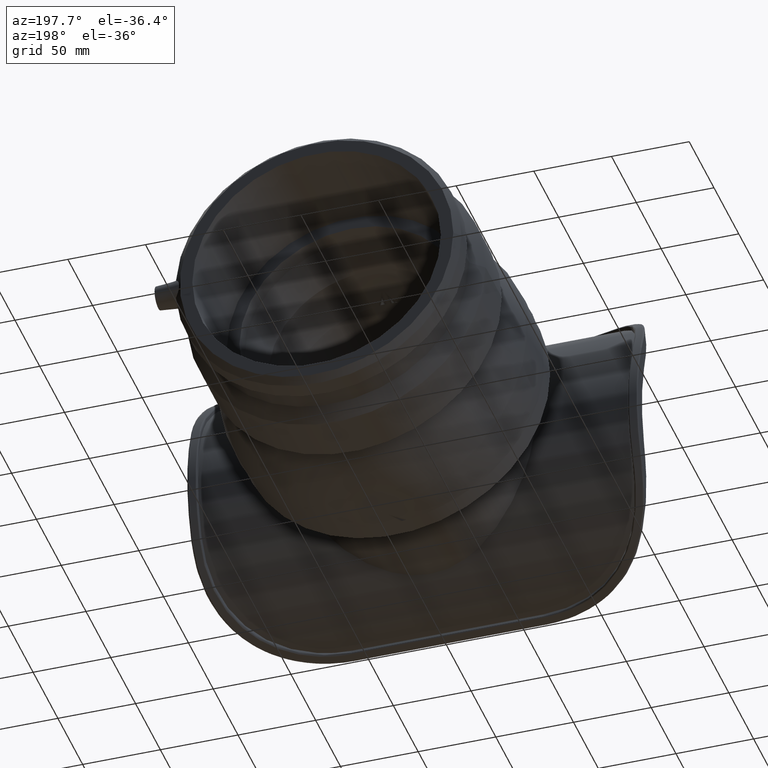
[diagram: clean part render]
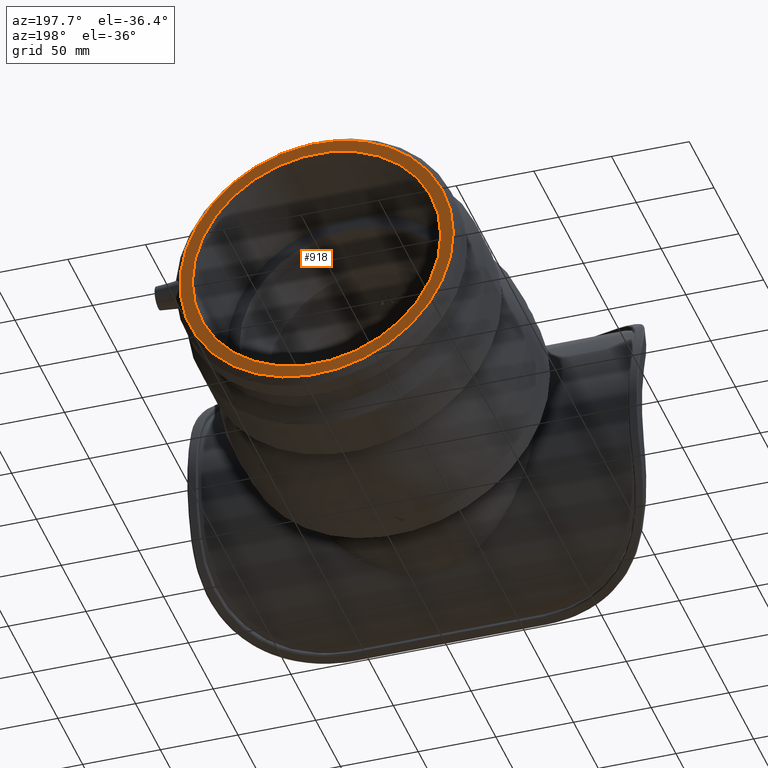
[diagram: same view with one face highlighted and labeled with its STEP entity id]
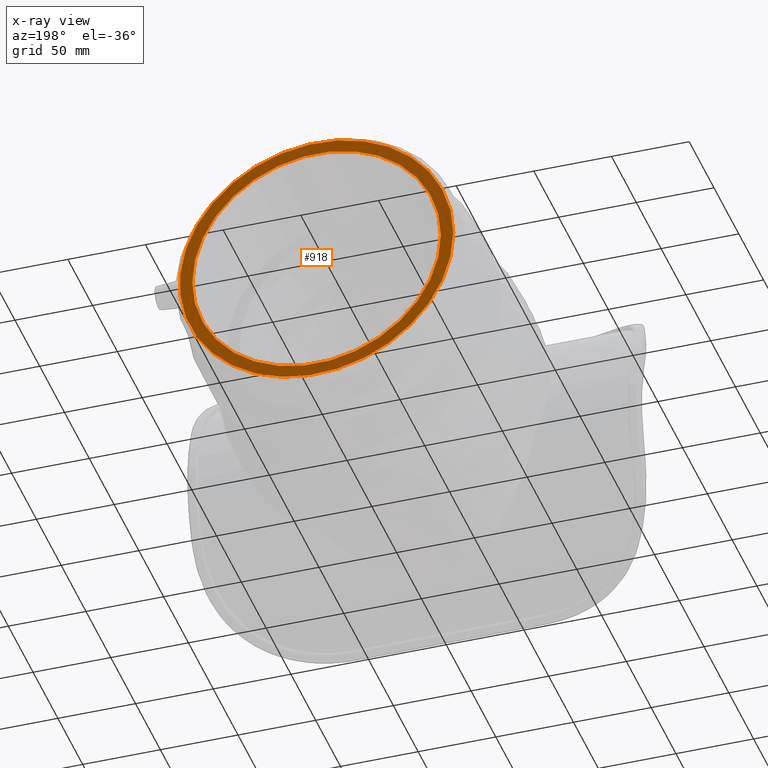
[diagram: x-ray of the same camera — body ghosted, the highlighted face saturated]
A machine part, auxiliary view. The second image highlights one B-rep face of the part: STEP entity #918.
The next image is the same camera in x-ray: the body ghosted, the highlighted face saturated — about 0% of this face is hidden behind the body in this view.
In plain terms, the highlighted planar face has unit normal (0, 1, 0).
Its self-contained STEP definition (entity closure, byte-faithful):
#161=FACE_BOUND('',#322,.T.);
#225=FACE_OUTER_BOUND('',#321,.T.);
#321=EDGE_LOOP('',(#702));
#322=EDGE_LOOP('',(#703));
#376=CIRCLE('',#983,88.);
#393=CIRCLE('',#1019,80.);
#440=VERTEX_POINT('',#1488);
#456=VERTEX_POINT('',#1672);
#526=EDGE_CURVE('',#440,#440,#376,.T.);
#545=EDGE_CURVE('',#456,#456,#393,.T.);
#702=ORIENTED_EDGE('',*,*,#526,.T.);
#703=ORIENTED_EDGE('',*,*,#545,.F.);
#878=PLANE('',#1018);
#918=ADVANCED_FACE('',(#225,#161),#878,.T.);
#983=AXIS2_PLACEMENT_3D('',#1489,#1127,#1128);
#1018=AXIS2_PLACEMENT_3D('',#1671,#1197,#1198);
#1019=AXIS2_PLACEMENT_3D('',#1673,#1199,#1200);
#1127=DIRECTION('center_axis',(0.,1.,0.));
#1128=DIRECTION('ref_axis',(1.,0.,0.));
#1197=DIRECTION('center_axis',(0.,1.,0.));
#1198=DIRECTION('ref_axis',(0.,0.,1.));
#1199=DIRECTION('center_axis',(0.,1.,0.));
#1200=DIRECTION('ref_axis',(1.,0.,0.));
#1488=CARTESIAN_POINT('',(-88.,161.6,0.));
#1489=CARTESIAN_POINT('Origin',(0.,161.6,0.));
#1671=CARTESIAN_POINT('Origin',(-80.,161.6,0.));
#1672=CARTESIAN_POINT('',(-80.,161.6,0.));
#1673=CARTESIAN_POINT('Origin',(0.,161.6,0.));